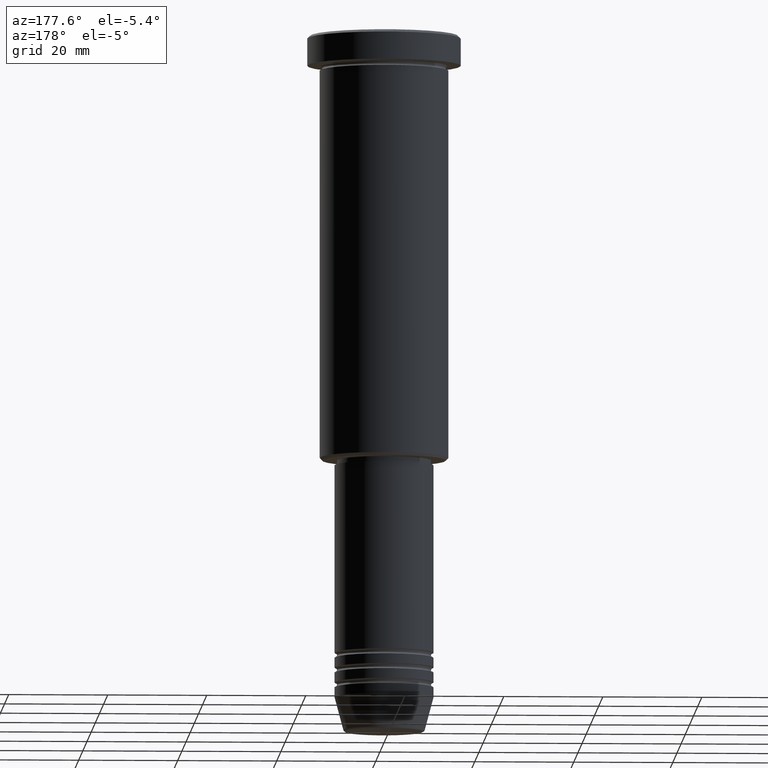
[diagram: clean part render]
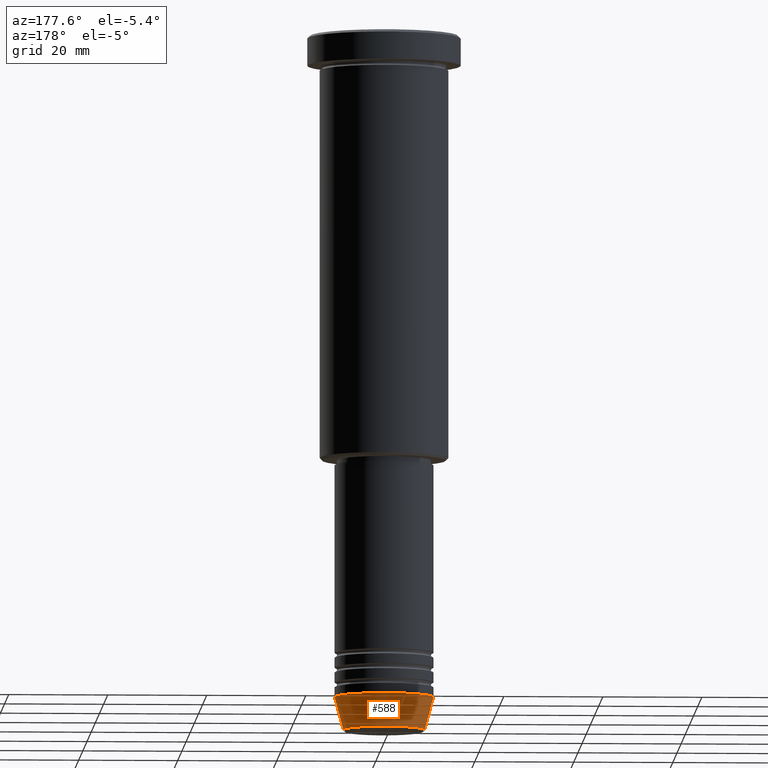
[diagram: same view with one face highlighted and labeled with its STEP entity id]
A machine part, auxiliary view. The second image highlights one B-rep face of the part: STEP entity #588.
In plain terms, the highlighted conical surface has half-angle 15 deg.
Its self-contained STEP definition (entity closure, byte-faithful):
#26 = CIRCLE ( 'NONE', #291, 8.223655072137191269 ) ;
#102 = LINE ( 'NONE', #1100, #1094 ) ;
#177 = VERTEX_POINT ( 'NONE', #489 ) ;
#184 = AXIS2_PLACEMENT_3D ( 'NONE', #467, #760, #293 ) ;
#186 = DIRECTION ( 'NONE',  ( -0.000000000000000000, -0.000000000000000000, 1.000000000000000000 ) ) ;
#215 = DIRECTION ( 'NONE',  ( 0.2588190451025213501, 0.000000000000000000, 0.9659258262890680902 ) ) ;
#216 = CARTESIAN_POINT ( 'NONE',  ( 8.223655072137191269, 0.000000000000000000, -140.6294095225512706 ) ) ;
#261 = ORIENTED_EDGE ( 'NONE', *, *, #902, .T. ) ;
#291 = AXIS2_PLACEMENT_3D ( 'NONE', #623, #343, #969 ) ;
#293 = DIRECTION ( 'NONE',  ( 1.000000000000000000, 0.000000000000000000, 0.000000000000000000 ) ) ;
#306 = LINE ( 'NONE', #1044, #858 ) ;
#343 = DIRECTION ( 'NONE',  ( -0.000000000000000000, -0.000000000000000000, 1.000000000000000000 ) ) ;
#402 = EDGE_CURVE ( 'NONE', #1180, #177, #306, .T. ) ;
#418 = ORIENTED_EDGE ( 'NONE', *, *, #845, .F. ) ;
#433 = CARTESIAN_POINT ( 'NONE',  ( -8.223655072137191269, 1.115877042642912054E-15, -140.6294095225512706 ) ) ;
#467 = CARTESIAN_POINT ( 'NONE',  ( 0.000000000000000000, 0.000000000000000000, -134.0000000000000000 ) ) ;
#489 = CARTESIAN_POINT ( 'NONE',  ( 10.00000000000000000, 0.000000000000000000, -134.0000000000000000 ) ) ;
#538 = CIRCLE ( 'NONE', #723, 10.00000000000000000 ) ;
#547 = CARTESIAN_POINT ( 'NONE',  ( 0.000000000000000000, 0.000000000000000000, -134.0000000000000000 ) ) ;
#588 = ADVANCED_FACE ( 'NONE', ( #747 ), #698, .T. ) ;
#623 = CARTESIAN_POINT ( 'NONE',  ( 0.000000000000000000, 0.000000000000000000, -140.6294095225512706 ) ) ;
#627 = EDGE_LOOP ( 'NONE', ( #261, #1079, #418, #973 ) ) ;
#698 = CONICAL_SURFACE ( 'NONE', #184, 10.00000000000000000, 0.2617993877991500740 ) ;
#723 = AXIS2_PLACEMENT_3D ( 'NONE', #547, #186, #1102 ) ;
#747 = FACE_OUTER_BOUND ( 'NONE', #627, .T. ) ;
#760 = DIRECTION ( 'NONE',  ( -0.000000000000000000, -0.000000000000000000, 1.000000000000000000 ) ) ;
#845 = EDGE_CURVE ( 'NONE', #177, #939, #538, .T. ) ;
#858 = VECTOR ( 'NONE', #215, 1000.000000000000000 ) ;
#902 = EDGE_CURVE ( 'NONE', #1180, #944, #26, .T. ) ;
#939 = VERTEX_POINT ( 'NONE', #992 ) ;
#944 = VERTEX_POINT ( 'NONE', #433 ) ;
#969 = DIRECTION ( 'NONE',  ( 1.000000000000000000, 0.000000000000000000, 0.000000000000000000 ) ) ;
#973 = ORIENTED_EDGE ( 'NONE', *, *, #402, .F. ) ;
#992 = CARTESIAN_POINT ( 'NONE',  ( -10.00000000000000000, 1.224646799147353256E-15, -134.0000000000000000 ) ) ;
#1041 = EDGE_CURVE ( 'NONE', #944, #939, #102, .T. ) ;
#1044 = CARTESIAN_POINT ( 'NONE',  ( 10.00000000000000000, 0.000000000000000000, -134.0000000000000000 ) ) ;
#1079 = ORIENTED_EDGE ( 'NONE', *, *, #1041, .T. ) ;
#1083 = DIRECTION ( 'NONE',  ( -0.2588190451025213501, 3.169619151431772337E-17, 0.9659258262890680902 ) ) ;
#1094 = VECTOR ( 'NONE', #1083, 1000.000000000000000 ) ;
#1100 = CARTESIAN_POINT ( 'NONE',  ( -10.00000000000000000, 1.224646799147353256E-15, -134.0000000000000000 ) ) ;
#1102 = DIRECTION ( 'NONE',  ( 1.000000000000000000, 0.000000000000000000, 0.000000000000000000 ) ) ;
#1180 = VERTEX_POINT ( 'NONE', #216 ) ;